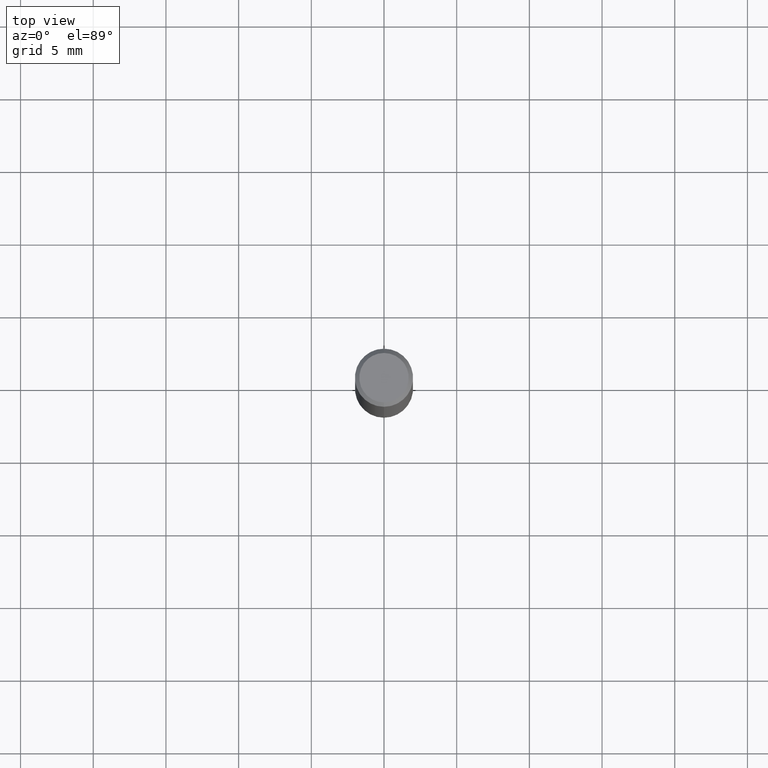
[diagram: clean part render]
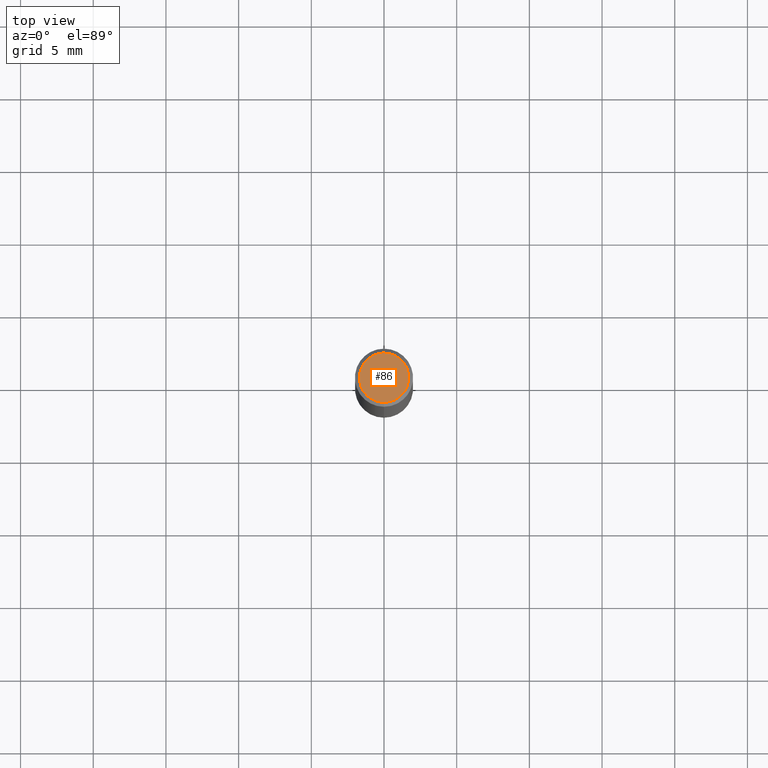
[diagram: same view with one face highlighted and labeled with its STEP entity id]
A machine part, top view. The second image highlights one B-rep face of the part: STEP entity #86.
In plain terms, the highlighted planar face has unit normal (-0, 0, 1).
Its self-contained STEP definition (entity closure, byte-faithful):
#86=ADVANCED_FACE('',(#211),#212,.T.);
#100=VERTEX_POINT('',#227);
#156=VERTEX_POINT('',#288);
#166=EDGE_CURVE('',#156,#100,#301,.T.);
#178=EDGE_CURVE('',#100,#156,#315,.T.);
#211=FACE_OUTER_BOUND('',#343,.T.);
#212=PLANE('',#344);
#227=CARTESIAN_POINT('',(2.08183080149804E-016,-1.7,0.0));
#288=CARTESIAN_POINT('',(0.0,1.7,0.0));
#301=CIRCLE('',#455,1.7);
#315=CIRCLE('',#474,1.7);
#343=EDGE_LOOP('',(#494,#495));
#344=AXIS2_PLACEMENT_3D('',#496,#497,#498);
#455=AXIS2_PLACEMENT_3D('',#599,#600,#601);
#474=AXIS2_PLACEMENT_3D('',#617,#618,#619);
#494=ORIENTED_EDGE('',*,*,#166,.F.);
#495=ORIENTED_EDGE('',*,*,#178,.F.);
#496=CARTESIAN_POINT('',(0.0,0.85,0.0));
#497=DIRECTION('',(-0.0,0.0,1.0));
#498=DIRECTION('',(0.0,-1.0,0.0));
#599=CARTESIAN_POINT('',(0.0,0.0,0.0));
#600=DIRECTION('',(0.0,0.0,-1.0));
#601=DIRECTION('',(0.0,1.0,0.0));
#617=CARTESIAN_POINT('',(0.0,0.0,0.0));
#618=DIRECTION('',(0.0,0.0,-1.0));
#619=DIRECTION('',(0.0,1.0,0.0));